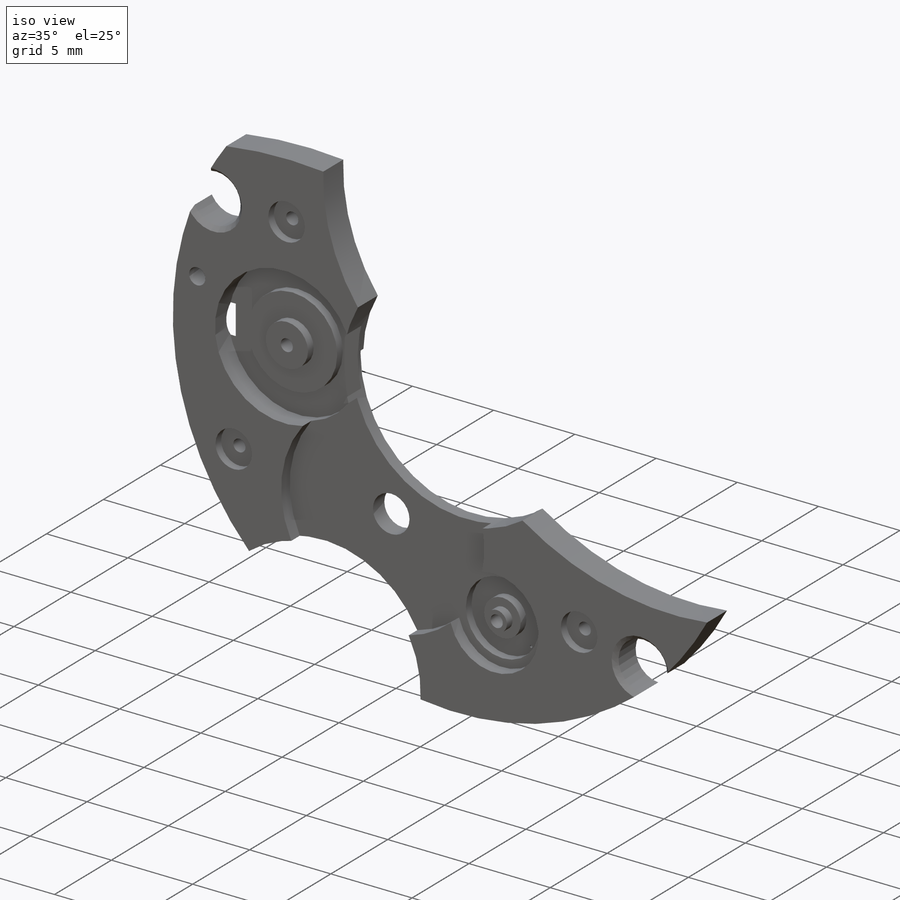
[diagram: iso view]
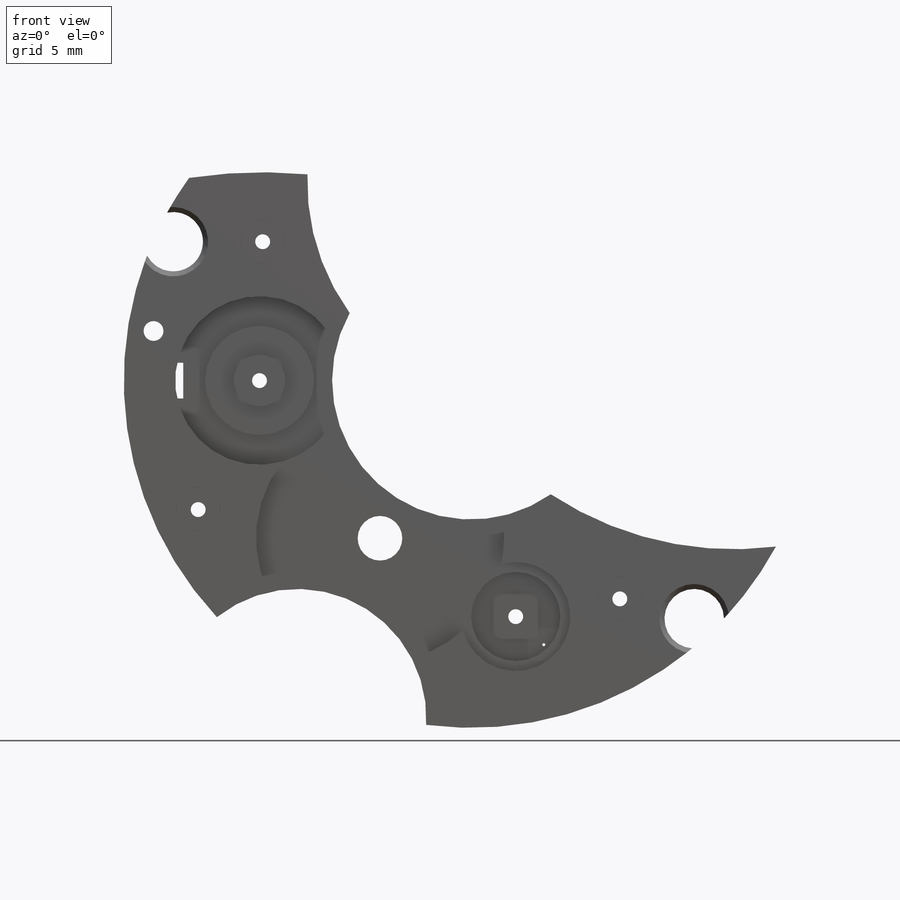
[diagram: front view]
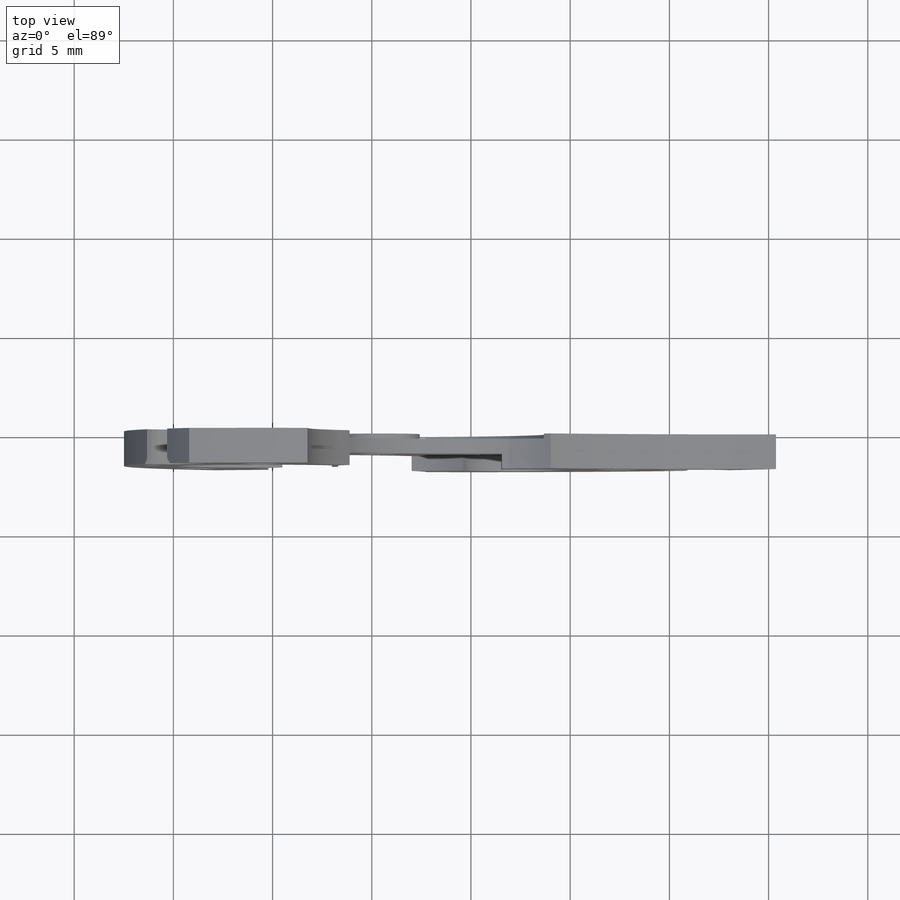
[diagram: top view]
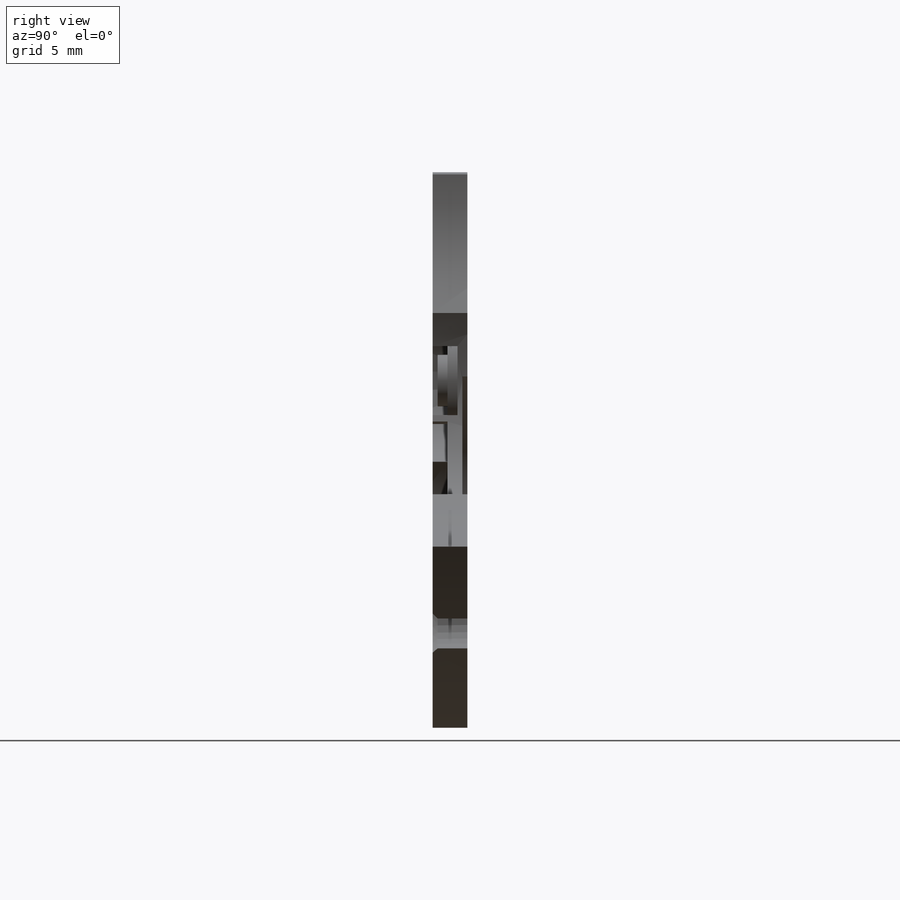
[diagram: right view]
SOLIDWORKS PART (.sldprt)
format: sldprt  version: not decoded by parser v0  size: 659,456 bytes
history: native  units: mm
features: sketch x19, cut_extrude x8, extrude x5, thread x5, plane x4, hole x3, material x1, chamfer x1 (+8 scaffold rows collapsed)
feature tree (54):
  scaffold x8  (default folders/planes/origin — collapsed)
  material  "Material <sin especificar>"
  plane  "Alzado"
  plane  "Planta"
  plane  "Vista lateral"
  sketch  "Croquis2"  dims[c1.D1=7.0mm c1.D2=11.25mm c1.D3=16.75mm c1.D8=17.5mm c1.D9=2.25mm c1.D10=1.5mm c1.D11=1.5mm c1.D12=6.5mm c1.D15=24.5mm c1.D24=1.0mm c1.D4=13.25mm c1.D5=8.25mm c1.D6=3.0mm c1.D7=10.0mm c1.D13=8.75mm c1.D14=17.0mm c1.D16=14.0mm c1.D17=10.5mm c1.D18=15.0mm c1.D19=7.0mm c1.D20=7.75mm c1.D21=4.75mm c1.D22=12.0mm c1.D23=11.25mm c1.D25=16.0mm c1.D26=2.5mm c2.D20=9.175mm c2.D21=9.15mm c3.D21=30.0deg]
  extrude  "Saliente-Extruir1"  Depth=1.75mm
  sketch  "Croquis3"  dims[c1.D1=12.5mm c1.D2=5.5mm c1.D3=3.5mm c1.D4=11.25mm c2.D3=7.0mm c3.D3=30.0deg c3.D4=7.9mm]
  cut_extrude  "Cortar-Extruir1"  Depth=0.75mm
  sketch  "Croquis4"  dims[D1=17.0mm]
  cut_extrude  "Cortar-Extruir2"  Depth=0.25mm
  sketch  "Croquis5"  dims[D1=4.5mm D2=2.25mm]
  cut_extrude  "Cortar-Extruir3"  Depth=0.5mm
  sketch  "Croquis6"  dims[D1=1.25mm]
  extrude  "Saliente-Extruir2"  Depth=0.5mm
  sketch  "Croquis7"  dims[c1.D1=8.5mm c1.D2=10.0mm c1.D3=~24.929251mm c2.D3=~50.805033deg c3.D3=~24.929251mm c4.D3=~50.805033deg]
  cut_extrude  "Cortar-Extruir4"  Depth=1.25mm
  sketch  "Croquis8"  dims[D1=5.5mm]
  extrude  "Saliente-Extruir3"  Depth=0.5mm
  sketch  "Croquis9"  dims[D1=2.6mm]
  extrude  "Saliente-Extruir4"  Depth=0.5mm
  sketch  "Croquis10"  dims[c1.D1=0.15mm c1.D2=2.0mm c1.D3=~1.748954mm c2.D3=45.0deg]
  cut_extrude  "Cortar-Extruir5"  [1 undecoded]
  sketch  "Croquis11"  dims[D1=2.25mm D2=2.25mm D3=2.25mm D4=13.75mm D5=6.5mm D6=7.0mm D7=10.5mm D8=11.0mm D9=7.5mm]
  cut_extrude  "Cortar-Extruir6"  Depth=0.5mm
  hole  "Taladro roscado M1x0.251"  Depth=1.5mm  [1 undecoded]
  sketch  "Croquis13"
  sketch  "Croquis12"  dims[hole-wizard template sketch: 60 standard entries collapsed; hole parameters kept: c18.Profundidad de perforador para roscar hasta el siguiente=1.5mm]
  thread  "Rosca de taladro4"  Diameter=1mm  [1 undecoded]
  hole  "Taladro roscado M1x0.253"  Depth=1.5mm  [1 undecoded]
  sketch  "Croquis15"
  sketch  "Croquis14"  dims[hole-wizard template sketch: 60 standard entries collapsed; hole parameters kept: c18.Profundidad de perforador para roscar hasta el siguiente=1.5mm]
  thread  "Rosca de taladro5"  Diameter=1mm  [1 undecoded]
  chamfer  "Chaflán1"  Distance=0.25mm Angle=45deg
  sketch  "Croquis16"  dims[D1=4.0mm]
  extrude  "Saliente-Extruir5"  Depth=0.25mm
  plane  "Plano1"  Offset=14.5mm
  sketch  "Croquis19"  dims[D1=3.5mm D2=2.75mm]
  cut_extrude  "Cortar-Extruir7"  Depth=1mm
  sketch  "Croquis20"  dims[D1=2.5mm]
  cut_extrude  "Cortar-Extruir8"  Depth=3mm
  hole  "Taladro roscado M1x0.252"  Depth=1.25mm  [1 undecoded]
  sketch  "Croquis22"
  sketch  "Croquis23"  dims[hole-wizard template sketch: 61 standard entries collapsed; hole parameters above]
  thread  "Rosca de taladro1"  Diameter=1mm  [1 undecoded]
  thread  "Rosca de taladro2"  Diameter=1mm  [1 undecoded]
  thread  "Rosca de taladro3"  Diameter=1mm  [1 undecoded]
decode coverage: 37 of 41 modeling features carry decoded parameters
note: ~ marks probable driven/reference dimensions
note: 9 parameter values undecoded
summary: no parameter record found for 4 features
note: suppression state not decoded; provenance and decode notes live in map.json
